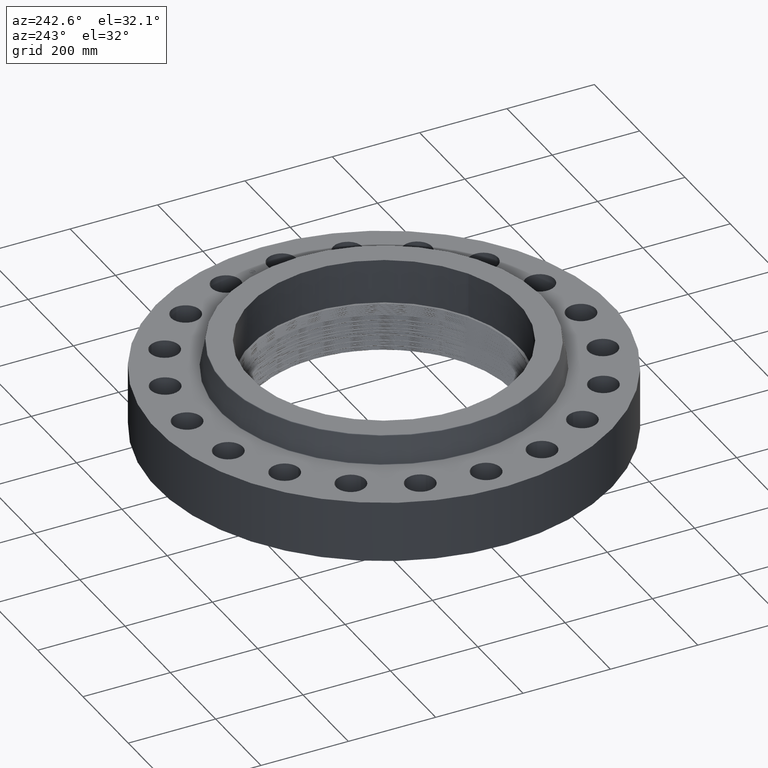
[diagram: clean part render]
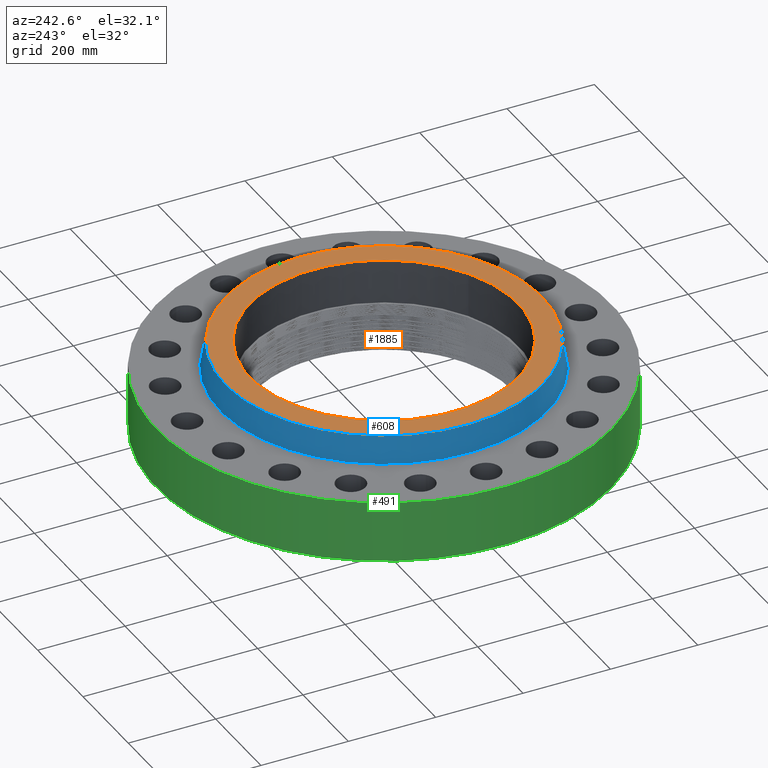
[diagram: same view with three faces highlighted in distinct colors, each labeled with its STEP entity id]
A machine part, auxiliary view with three faces highlighted in distinct colors.
Their STEP definitions:

[orange] entity #1885 — the highlighted planar face has unit normal (0, 0, -1).
#366=AXIS2_PLACEMENT_3D('Circle Axis2P3D',#364,#365,$) ;
#385=AXIS2_PLACEMENT_3D('Circle Axis2P3D',#383,#384,$) ;
#623=AXIS2_PLACEMENT_3D('Circle Axis2P3D',#621,#622,$) ;
#642=AXIS2_PLACEMENT_3D('Circle Axis2P3D',#640,#641,$) ;
#1875=AXIS2_PLACEMENT_3D('Plane Axis2P3D',#1872,#1873,#1874) ;
#361=CARTESIAN_POINT('Vertex',(5.79865188944,-10.6143610861,8.00000000003)) ;
#364=CARTESIAN_POINT('Axis2P3D Location',(0.,0.,8.00000000003)) ;
#368=CARTESIAN_POINT('Vertex',(-5.79865188944,10.6143610861,8.00000000003)) ;
#383=CARTESIAN_POINT('Axis2P3D Location',(0.,0.,8.00000000003)) ;
#618=CARTESIAN_POINT('Vertex',(6.83605040264,12.513306327,8.00000000003)) ;
#621=CARTESIAN_POINT('Axis2P3D Location',(0.,0.,8.00000000003)) ;
#625=CARTESIAN_POINT('Vertex',(-6.83605040264,-12.513306327,8.00000000003)) ;
#640=CARTESIAN_POINT('Axis2P3D Location',(0.,0.,8.00000000003)) ;
#1872=CARTESIAN_POINT('Axis2P3D Location',(0.,14.2588365704,8.00000000003)) ;
#365=DIRECTION('Axis2P3D Direction',(0.,0.,0.0393700787402)) ;
#384=DIRECTION('Axis2P3D Direction',(0.,0.,0.0393700787402)) ;
#622=DIRECTION('Axis2P3D Direction',(0.,0.,-0.0393700787402)) ;
#641=DIRECTION('Axis2P3D Direction',(0.,0.,-0.0393700787402)) ;
#1873=DIRECTION('Axis2P3D Direction',(0.,0.,-0.0393700787402)) ;
#1874=DIRECTION('Axis2P3D XDirection',(0.0393700787402,0.,0.)) ;
#1878=ORIENTED_EDGE('',*,*,#627,.F.) ;
#1879=ORIENTED_EDGE('',*,*,#644,.F.) ;
#1882=ORIENTED_EDGE('',*,*,#370,.F.) ;
#1883=ORIENTED_EDGE('',*,*,#387,.F.) ;
#1884=FACE_BOUND('',#1881,.T.) ;
#1885=ADVANCED_FACE('PartBody',(#1880,#1884),#1876,.F.) ;
#367=CIRCLE('generated circle',#366,12.095) ;
#386=CIRCLE('generated circle',#385,12.095) ;
#624=CIRCLE('generated circle',#623,14.2588365704) ;
#643=CIRCLE('generated circle',#642,14.2588365704) ;
#370=EDGE_CURVE('',#362,#369,#367,.T.) ;
#387=EDGE_CURVE('',#369,#362,#386,.T.) ;
#627=EDGE_CURVE('',#619,#626,#624,.T.) ;
#644=EDGE_CURVE('',#626,#619,#643,.T.) ;
#1877=EDGE_LOOP('',(#1878,#1879)) ;
#1881=EDGE_LOOP('',(#1882,#1883)) ;
#1880=FACE_OUTER_BOUND('',#1877,.T.) ;
#1876=PLANE('',#1875) ;
#362=VERTEX_POINT('',#361) ;
#369=VERTEX_POINT('',#368) ;
#619=VERTEX_POINT('',#618) ;
#626=VERTEX_POINT('',#625) ;

[blue] entity #608 — the highlighted conical surface has half-angle 10 deg.
#556=AXIS2_PLACEMENT_3D('Circle Axis2P3D',#554,#555,$) ;
#569=AXIS2_PLACEMENT_3D('Cone Axis2P3D',#566,#567,#568) ;
#599=AXIS2_PLACEMENT_3D('Circle Axis2P3D',#597,#598,$) ;
#527=CARTESIAN_POINT('Vertex',(7.06733532275,12.9366705335,5.54958110936)) ;
#534=CARTESIAN_POINT('Vertex',(-7.06733532275,-12.9366705335,5.54958110936)) ;
#554=CARTESIAN_POINT('Axis2P3D Location',(0.,0.,5.54958110936)) ;
#566=CARTESIAN_POINT('Axis2P3D Location',(0.,0.,7.95041889069)) ;
#571=CARTESIAN_POINT('Line Origine',(6.96585712232,12.7509159336,6.75000000003)) ;
#575=CARTESIAN_POINT('Vertex',(6.86437892189,12.5651613337,7.95041889069)) ;
#582=CARTESIAN_POINT('Vertex',(-6.86437892189,-12.5651613337,7.95041889069)) ;
#585=CARTESIAN_POINT('Line Origine',(-6.96585712232,-12.7509159336,6.75000000003)) ;
#597=CARTESIAN_POINT('Axis2P3D Location',(0.,0.,7.95041889069)) ;
#555=DIRECTION('Axis2P3D Direction',(0.,0.,-0.0393700787402)) ;
#567=DIRECTION('Axis2P3D Direction',(0.,0.,-0.0393700787402)) ;
#568=DIRECTION('Axis2P3D XDirection',(-0.0188750212049,-0.0345504945626,0.)) ;
#572=DIRECTION('Vector Direction',(0.00327761303565,0.00599963041829,-0.03877195878)) ;
#586=DIRECTION('Vector Direction',(-0.00327761303565,-0.00599963041829,-0.03877195878)) ;
#598=DIRECTION('Axis2P3D Direction',(0.,0.,-0.0393700787402)) ;
#573=VECTOR('Line Direction',#572,0.0393700787402) ;
#587=VECTOR('Line Direction',#586,0.0393700787402) ;
#603=ORIENTED_EDGE('',*,*,#558,.F.) ;
#604=ORIENTED_EDGE('',*,*,#589,.T.) ;
#605=ORIENTED_EDGE('',*,*,#601,.T.) ;
#606=ORIENTED_EDGE('',*,*,#577,.F.) ;
#608=ADVANCED_FACE('PartBody',(#607),#570,.T.) ;
#557=CIRCLE('generated circle',#556,14.7412575127) ;
#600=CIRCLE('generated circle',#599,14.3179250356) ;
#570=CONICAL_SURFACE('Cone',#569,14.3179250356,0.174532925199) ;
#558=EDGE_CURVE('',#535,#528,#557,.T.) ;
#577=EDGE_CURVE('',#528,#576,#574,.F.) ;
#589=EDGE_CURVE('',#535,#583,#588,.F.) ;
#601=EDGE_CURVE('',#583,#576,#600,.T.) ;
#602=EDGE_LOOP('',(#603,#604,#605,#606)) ;
#607=FACE_OUTER_BOUND('',#602,.T.) ;
#574=LINE('Line',#571,#573) ;
#588=LINE('Line',#585,#587) ;
#528=VERTEX_POINT('',#527) ;
#535=VERTEX_POINT('',#534) ;
#576=VERTEX_POINT('',#575) ;
#583=VERTEX_POINT('',#582) ;

[green] entity #491 — the highlighted cylindrical surface (partial cylindrical patch) has radius 520.7 mm, axis along (0, 0, -1).
#455=AXIS2_PLACEMENT_3D('Cylinder Axis2P3D',#452,#453,#454) ;
#459=AXIS2_PLACEMENT_3D('Circle Axis2P3D',#457,#458,$) ;
#475=AXIS2_PLACEMENT_3D('Circle Axis2P3D',#473,#474,$) ;
#452=CARTESIAN_POINT('Axis2P3D Location',(0.,0.,3.87500000002)) ;
#457=CARTESIAN_POINT('Axis2P3D Location',(0.,0.,2.23792987641E-015)) ;
#461=CARTESIAN_POINT('Vertex',(-9.82822354143,-17.9904425188,2.23792987641E-015)) ;
#463=CARTESIAN_POINT('Vertex',(9.82822354143,17.9904425188,2.23792987641E-015)) ;
#466=CARTESIAN_POINT('Line Origine',(-9.82822354143,-17.9904425188,2.75000000001)) ;
#470=CARTESIAN_POINT('Vertex',(-9.82822354143,-17.9904425188,5.50000000002)) ;
#473=CARTESIAN_POINT('Axis2P3D Location',(0.,0.,5.50000000002)) ;
#477=CARTESIAN_POINT('Vertex',(9.82822354143,17.9904425188,5.50000000002)) ;
#480=CARTESIAN_POINT('Line Origine',(9.82822354143,17.9904425188,2.75000000001)) ;
#453=DIRECTION('Axis2P3D Direction',(0.,0.,-0.0393700787402)) ;
#454=DIRECTION('Axis2P3D XDirection',(0.0188750212049,0.0345504945626,0.)) ;
#458=DIRECTION('Axis2P3D Direction',(0.,0.,-0.0393700787402)) ;
#467=DIRECTION('Vector Direction',(0.,0.,-0.0393700787402)) ;
#474=DIRECTION('Axis2P3D Direction',(0.,0.,-0.0393700787402)) ;
#481=DIRECTION('Vector Direction',(0.,0.,-0.0393700787402)) ;
#468=VECTOR('Line Direction',#467,0.0393700787402) ;
#482=VECTOR('Line Direction',#481,0.0393700787402) ;
#486=ORIENTED_EDGE('',*,*,#465,.F.) ;
#487=ORIENTED_EDGE('',*,*,#472,.T.) ;
#488=ORIENTED_EDGE('',*,*,#479,.T.) ;
#489=ORIENTED_EDGE('',*,*,#484,.F.) ;
#491=ADVANCED_FACE('PartBody',(#490),#456,.T.) ;
#460=CIRCLE('generated circle',#459,20.5000000001) ;
#476=CIRCLE('generated circle',#475,20.5000000001) ;
#456=CYLINDRICAL_SURFACE('generated cylinder',#455,20.5000000001) ;
#465=EDGE_CURVE('',#462,#464,#460,.T.) ;
#472=EDGE_CURVE('',#462,#471,#469,.F.) ;
#479=EDGE_CURVE('',#471,#478,#476,.T.) ;
#484=EDGE_CURVE('',#464,#478,#483,.F.) ;
#485=EDGE_LOOP('',(#486,#487,#488,#489)) ;
#490=FACE_OUTER_BOUND('',#485,.T.) ;
#469=LINE('Line',#466,#468) ;
#483=LINE('Line',#480,#482) ;
#462=VERTEX_POINT('',#461) ;
#464=VERTEX_POINT('',#463) ;
#471=VERTEX_POINT('',#470) ;
#478=VERTEX_POINT('',#477) ;